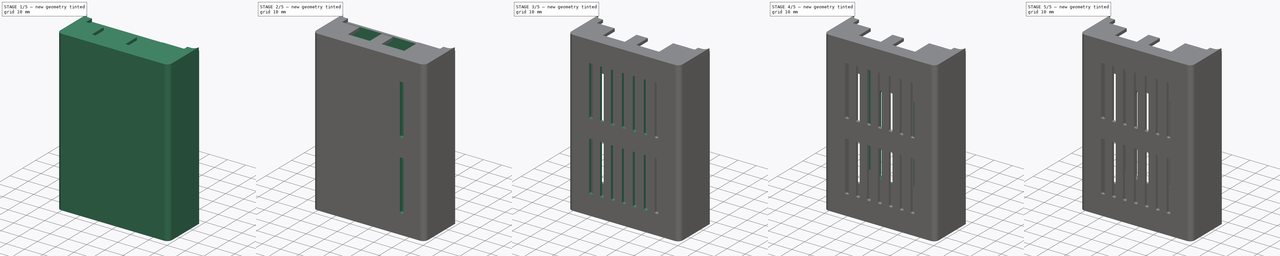
[diagram: build sequence overview — one tinted view per stage of 5, left to right]
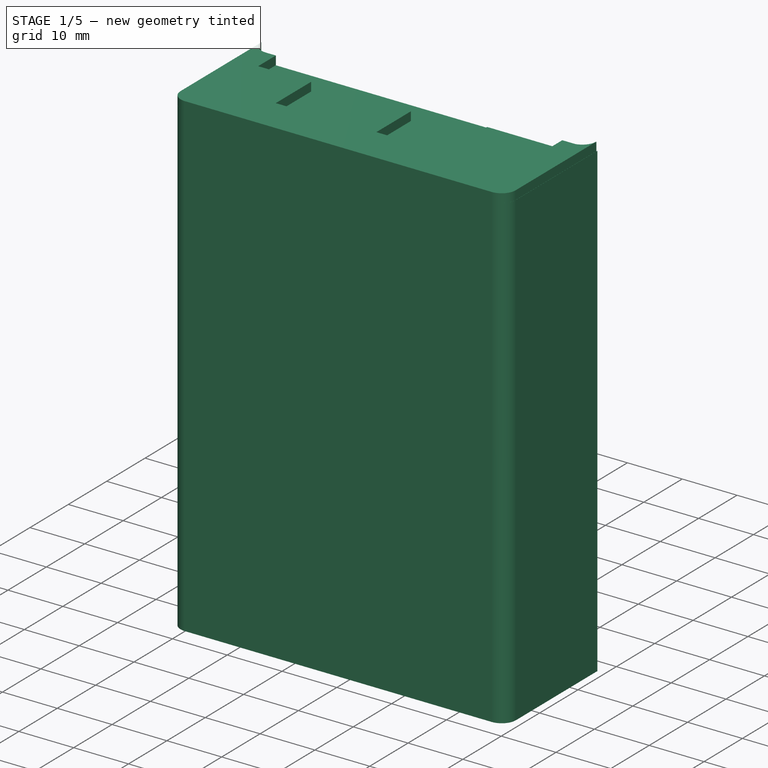
[diagram: stage 1 of 5 — iso view after this stage's code; geometry added in this stage tinted green]
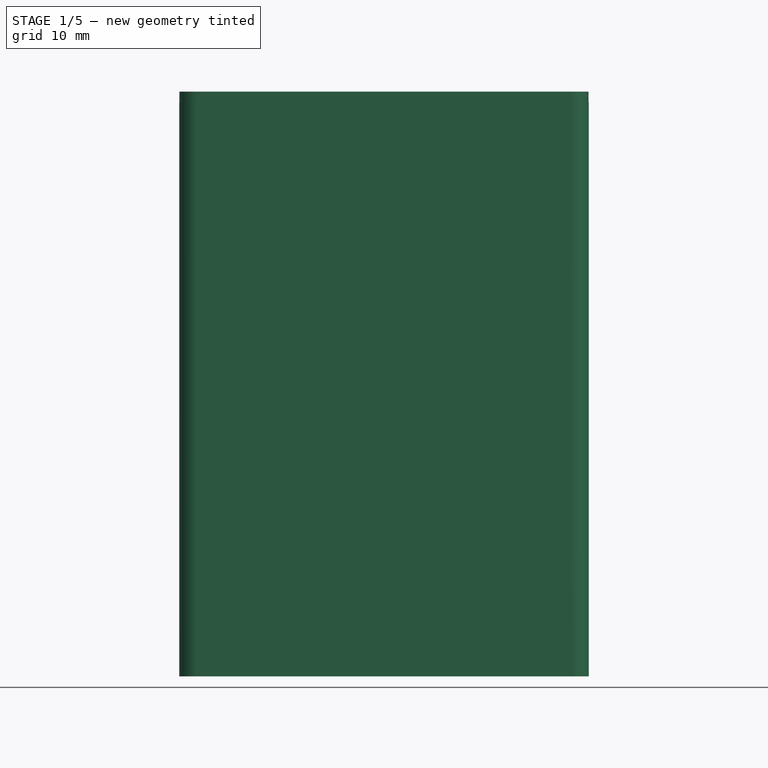
[diagram: stage 1 of 5 — front view after this stage's code; geometry added in this stage tinted green]
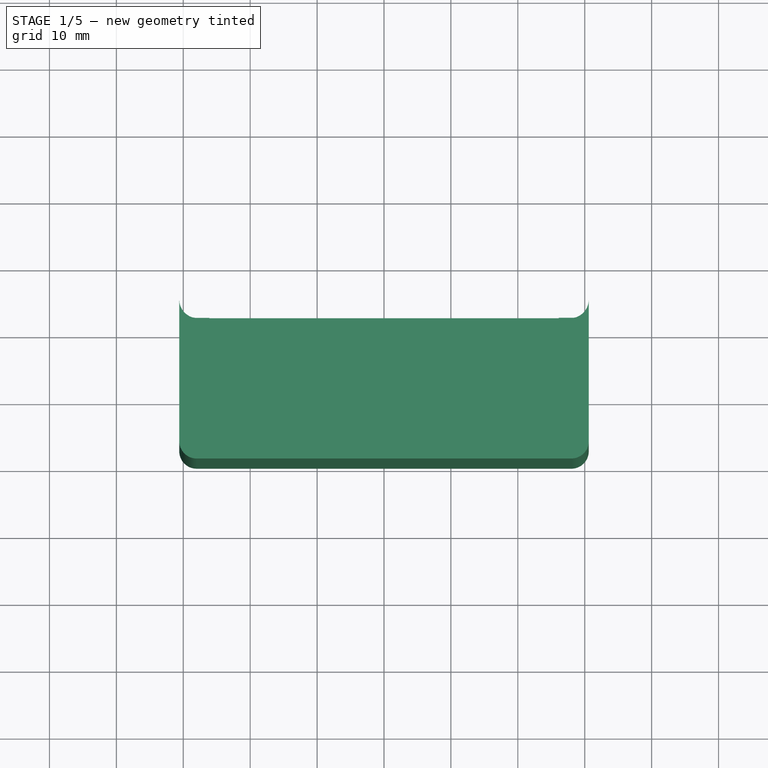
[diagram: stage 1 of 5 — top view after this stage's code; geometry added in this stage tinted green]
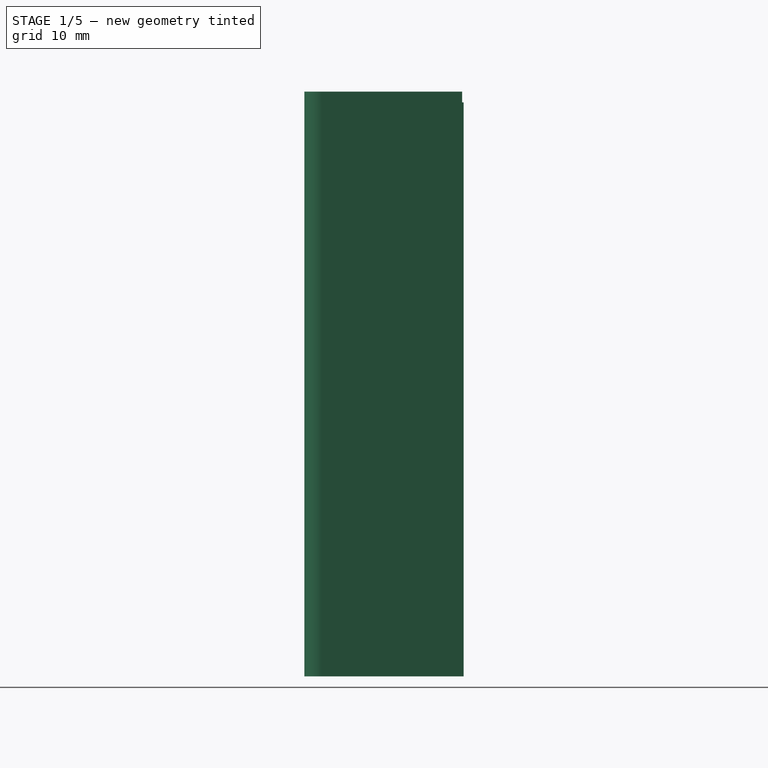
[diagram: stage 1 of 5 — right view after this stage's code; geometry added in this stage tinted green]
FCSTD DOCUMENT  (FreeCAD 0.16R5850 (Git))
Label: PiCaseModule
License: CreativeCommons Attribution-ShareAlike
LicenseURL: http://creativecommons.org/licenses/by-sa/4.0/
objects: Sketcher::SketchObject×13, PartDesign::Pocket×7, PartDesign::Pad×6, Part::Feature×5, PartDesign::LinearPattern×2, App::DocumentObjectGroup×2
note: 46 computed .brp shape members not serialized (recipe doc carries the construction recipe); baked Part::Feature solids carry a one-line shape summary decoded from their .brp

FEATURE [Part::Feature] Part__Feature  label="PiCase"
  Placement = pos=(0,0,0) rot=(0,0,1;3.14159rad)
  shape: bbox 61.2 x 16.7 x 85.8 mm, 248 faces (baked)
FEATURE [Sketcher::SketchObject] Sketch
  Placement = pos=(0,0,-0.8) rot=(0,0,1;0rad)
  sketch-geometry (8):
    g0: LineSegment StartX=-30.6 StartY=-5.8 StartZ=0 EndX=-30.6 EndY=-27 EndZ=0
    g1: LineSegment StartX=-28 StartY=-29.6 StartZ=0 EndX=28 EndY=-29.6 EndZ=0
    g2: LineSegment StartX=30.6 StartY=-27 StartZ=0 EndX=30.6 EndY=-5.8 EndZ=0
    g3: LineSegment StartX=27.8 StartY=-8.59999 StartZ=0 EndX=-27.8 EndY=-8.59999 EndZ=0
    g4: ArcOfCircle CenterX=27.8 CenterY=-5.79999 CenterZ=0 NormalX=0 NormalY=0 NormalZ=1 Radius=2.8 StartAngle=4.71239 EndAngle=6.28318
    g5: ArcOfCircle CenterX=-27.8 CenterY=-5.79999 CenterZ=0 NormalX=0 NormalY=0 NormalZ=1 Radius=2.8 StartAngle=3.1416 EndAngle=4.71239
    g6: ArcOfCircle CenterX=-28 CenterY=-27 CenterZ=0 NormalX=0 NormalY=0 NormalZ=1 Radius=2.6 StartAngle=3.14159 EndAngle=4.71239
    g7: ArcOfCircle CenterX=28 CenterY=-27 CenterZ=0 NormalX=0 NormalY=0 NormalZ=1 Radius=2.6 StartAngle=4.71239 EndAngle=6.28319
  constraints (26):
    c: Vertical(g0)
    c: Horizontal(g1)
    c: Horizontal(g3)
    c: Vertical(g2)
    c: Coincident(g4,g3)
    c: Coincident(g4,g2)
    c: Coincident(g5,g3)
    c: Coincident(g0,g5)
    c: Tangent(g0,g5)
    c: Tangent(g4,g2)
    c: Equal(g2,g0)
    c: Tangent(g3,g4)
    c: Tangent(g5,g3)
    c: Tangent(g0,g6) = -1.5708
    c: Tangent(g1,g6) = -1.5708
    c: Tangent(g1,g7) = -1.5708
    c: Tangent(g2,g7) = -1.5708
    c: Equal(g0,g2)
    c: Equal(g7,g6)
    c: Radius(g7) = 2.6
    c: Radius(g5) = 2.8
    c: DistanceX(g0,g2) = 61.2
    c: Symmetric(g1,g1,g-2)
    c: Symmetric(g3,g3,g-2)
    c: DistanceY(g0) = -5.8
    c: DistanceY(g3,g1) = -21
FEATURE [PartDesign::Pad] Pad
  Length = 85.8
  Length2 = 100
  Placement = pos=(0,0,-0.8) rot=(0,0,1;0rad)
  Sketch = -> Sketch
  Type = 0
FEATURE [Part::Feature] Fusion003001  label="raspberry"
  Placement = pos=(27.7528,2.63054,0.267509) rot=(0.57735,-0.57735,0.57735;2.0944rad)
  shape: bbox 58.51 x 19.41 x 87.16 mm, 5404 faces (baked)
FEATURE [Part::Feature] Fusion002002  label="RpiMoudle"
  Placement = pos=(-1.75304e-05,-11.1322,32.6451) rot=(0,0.707107,-0.707107;3.14159rad)
  shape: bbox 36.6 x 16.06 x 64.5 mm, 112 faces, 4 solids (baked)
FEATURE [Part::Feature] Raspberry_Pi_B__Sleeve_v1_1_CAP001_solid001  label="Raspberry_Pi_B_CAP"
  Placement = pos=(31.2004,-8.45364,86.6413) rot=(0,1,0;3.14159rad)
  shape: bbox 61.2 x 16.7 x 2.6 mm, 685 faces (baked)
FEATURE [Sketcher::SketchObject] Sketch008
  Placement = pos=(0,0,85) rot=(0,0,1;0rad)
  sketch-geometry (20):
    g0: LineSegment StartX=30.5739 StartY=-6.02613 StartZ=0 EndX=30.5739 EndY=-27.0261 EndZ=0
    g1: LineSegment StartX=28 StartY=-29.6 StartZ=0 EndX=-28 EndY=-29.6 EndZ=0
    g2: LineSegment StartX=-30.5739 StartY=-27.0261 StartZ=0 EndX=-30.5739 EndY=-6.02613 EndZ=0
    g3: ArcOfCircle CenterX=28 CenterY=-27.0261 CenterZ=0 NormalX=0 NormalY=0 NormalZ=1 Radius=2.57387 StartAngle=4.71239 EndAngle=6.28319
    g4: ArcOfCircle CenterX=-28 CenterY=-27.0261 CenterZ=0 NormalX=0 NormalY=0 NormalZ=1 Radius=2.57387 StartAngle=3.14159 EndAngle=4.71239
    g5: ArcOfCircle CenterX=28.0248 CenterY=-6.02613 CenterZ=0 NormalX=0 NormalY=0 NormalZ=1 Radius=2.54908 StartAngle=4.84238 EndAngle=6.28319
    g6: ArcOfCircle CenterX=-28.0248 CenterY=-6.02613 CenterZ=0 NormalX=0 NormalY=0 NormalZ=1 Radius=2.54908 StartAngle=3.14159 EndAngle=4.71239
    g7: LineSegment StartX=-28.0248 StartY=-8.57521 StartZ=0 EndX=-26.1248 EndY=-8.57521 EndZ=0
    g8: LineSegment StartX=-26.1248 StartY=-8.57521 StartZ=0 EndX=-26.1248 EndY=-13.1752 EndZ=0
    g9: LineSegment StartX=-26.1248 StartY=-13.1752 StartZ=0 EndX=-16.4748 EndY=-13.1752 EndZ=0
    g10: LineSegment StartX=-16.4748 StartY=-13.1752 StartZ=0 EndX=-16.4748 EndY=-22.3752 EndZ=0
    g11: LineSegment StartX=-16.4748 StartY=-22.3752 StartZ=0 EndX=-4.47479 EndY=-22.3752 EndZ=0
    g12: LineSegment StartX=-4.47479 StartY=-22.3752 StartZ=0 EndX=-4.47479 EndY=-13.1752 EndZ=0
    g13: LineSegment StartX=-4.47479 StartY=-13.1752 StartZ=0 EndX=1.72521 EndY=-13.1752 EndZ=0
    g14: LineSegment StartX=1.72521 StartY=-13.1752 StartZ=0 EndX=1.72521 EndY=-22.1537 EndZ=0
    g15: LineSegment StartX=1.72521 StartY=-22.1537 StartZ=0 EndX=14.2252 EndY=-22.1537 EndZ=0
    g16: LineSegment StartX=14.2252 StartY=-22.1537 StartZ=0 EndX=14.2252 EndY=-11.1537 EndZ=0
    g17: LineSegment StartX=14.2252 StartY=-11.1537 StartZ=0 EndX=26.1252 EndY=-11.1537 EndZ=0
    g18: LineSegment StartX=26.1252 StartY=-11.1537 StartZ=0 EndX=26.1252 EndY=-8.5537 EndZ=0
    g19: LineSegment StartX=26.1252 StartY=-8.5537 StartZ=0 EndX=28.3552 EndY=-8.5537 EndZ=0
  constraints (58):
    c: Vertical(g0)
    c: Vertical(g2)
    c: Tangent(g1,g3) = 1.5708
    c: Tangent(g0,g3) = 1.5708
    c: Tangent(g1,g4) = 1.5708
    c: Tangent(g2,g4) = 1.5708
    c: Symmetric(g0,g2,g-2)
    c: Equal(g4,g3)
    c: DistanceY(g1) = -29.6
    c: Radius(g3) = 2.57387
    c: DistanceX(g1) = 28
    c: Coincident(g5,g0)
    c: Tangent(g5,g0)
    c: DistanceY(g0) = -21
    c: Radius(g5) = 2.54908
    c: Coincident(g6,g2)
    c: Tangent(g2,g6)
    c: Equal(g6,g5)
    c: Equal(g2,g0)
    c: Tangent(g6,g7) = -1.5708
    c: Coincident(g7,g8)
    c: Coincident(g8,g9)
    c: Horizontal(g9)
    c: Coincident(g9,g10)
    c: Vertical(g10)
    c: Coincident(g10,g11)
    c: Horizontal(g11)
    c: Coincident(g11,g12)
    c: Vertical(g12)
    c: Coincident(g12,g13)
    c: Horizontal(g13)
    c: Coincident(g13,g14)
    c: Vertical(g14)
    c: Coincident(g14,g15)
    c: Horizontal(g15)
    c: Coincident(g15,g16)
    c: Vertical(g16)
    c: Coincident(g16,g17)
    c: Horizontal(g17)
    c: Coincident(g17,g18)
    c: Vertical(g18)
    c: Coincident(g18,g19)
    c: Coincident(g19,g5)
    c: Vertical(g8)
    c: Horizontal(g7)
    c: Horizontal(g19)
    c: DistanceX(g19) = 2.23
    c: DistanceX(g15) = 12.5
    c: DistanceY(g18) = 2.6
    c: DistanceY(g16) = 11
    c: DistanceX(g11) = 12
    c: DistanceX(g7) = 1.9
    c: DistanceY(g8) = -4.6
    c: DistanceY(g10) = -9.2
    c: DistanceX(g9) = 9.65
    c: DistanceY(g12) = 9.2
    c: DistanceX(g17) = 11.9
    c: DistanceX(g13) = 6.2
FEATURE [PartDesign::Pad] Pad003  label="RpiModule_cap"
  Length = 1.6
  Length2 = 100
  Placement = pos=(0,0,85) rot=(0,0,1;0rad)
  Sketch = -> Sketch008
  Type = 0
FEATURE [Sketcher::SketchObject] Sketch011
  ExternalGeometry = -> [Pad003]
  Placement = pos=(0,0,85) rot=(1,0,0;3.14159rad)
  Support = -> Pad003 [Face21]
  sketch-geometry (8):
    g0: LineSegment StartX=-28.9248 StartY=8.57521 StartZ=0 EndX=-27.6248 EndY=8.57521 EndZ=0
    g1: LineSegment StartX=-27.6248 StartY=8.57521 StartZ=0 EndX=-27.6248 EndY=24.5752 EndZ=0
    g2: LineSegment StartX=-27.6248 StartY=24.5752 StartZ=0 EndX=-28.9248 EndY=24.5752 EndZ=0
    g3: LineSegment StartX=-28.9248 StartY=24.5752 StartZ=0 EndX=-28.9248 EndY=8.57521 EndZ=0
    g4: LineSegment StartX=27.6252 StartY=24.5537 StartZ=0 EndX=28.9252 EndY=24.5537 EndZ=0
    g5: LineSegment StartX=28.9252 StartY=24.5537 StartZ=0 EndX=28.9252 EndY=8.5537 EndZ=0
    g6: LineSegment StartX=28.9252 StartY=8.5537 StartZ=0 EndX=27.6252 EndY=8.5537 EndZ=0
    g7: LineSegment StartX=27.6252 StartY=8.5537 StartZ=0 EndX=27.6252 EndY=24.5537 EndZ=0
  constraints (24):
    c: Coincident(g0,g1)
    c: Coincident(g1,g2)
    c: Coincident(g2,g3)
    c: Coincident(g3,g0)
    c: Horizontal(g0)
    c: Horizontal(g2)
    c: Vertical(g1)
    c: Vertical(g3)
    c: PointOnObject(g0,g-3)
    c: DistanceX(g0,g-3) = 1.5
    c: DistanceX(g0) = 1.3
    c: DistanceY(g3) = -16
    c: Coincident(g4,g5)
    c: Coincident(g5,g6)
    c: Coincident(g6,g7)
    c: Coincident(g7,g4)
    c: Horizontal(g4)
    c: Horizontal(g6)
    c: Vertical(g5)
    c: Vertical(g7)
    c: PointOnObject(g6,g-4)
    c: DistanceX(g6) = -1.3
    c: DistanceX(g6,g-4) = -1.5
    c: Equal(g7,g1)
FEATURE [PartDesign::Pad] Pad004
  Length = 2.25
  Length2 = 100
  Placement = pos=(0,0,85) rot=(0,0,1;0rad)
  Sketch = -> Sketch011
  Type = 0
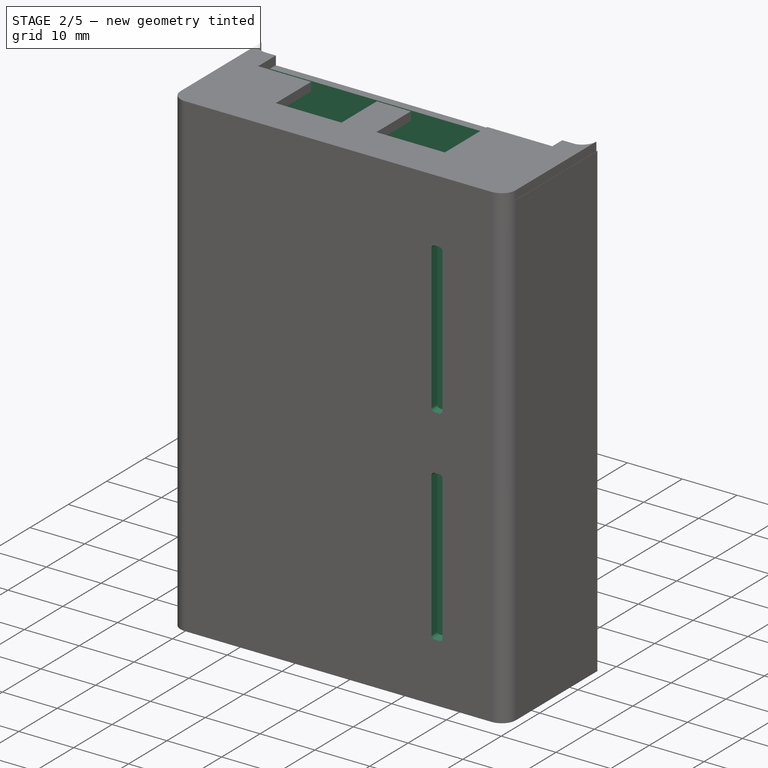
[diagram: stage 2 of 5 — iso view after this stage's code; geometry added in this stage tinted green]
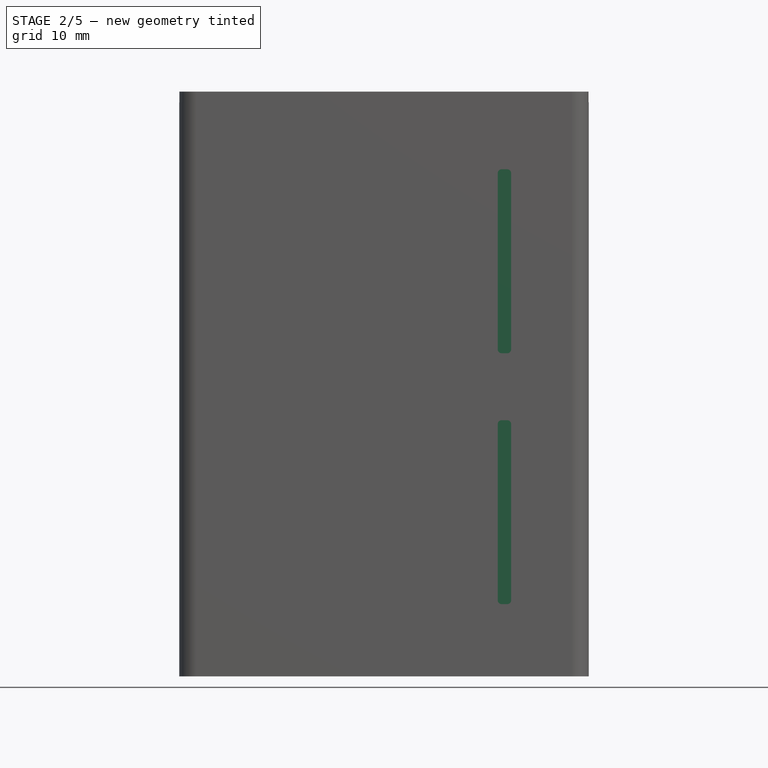
[diagram: stage 2 of 5 — front view after this stage's code; geometry added in this stage tinted green]
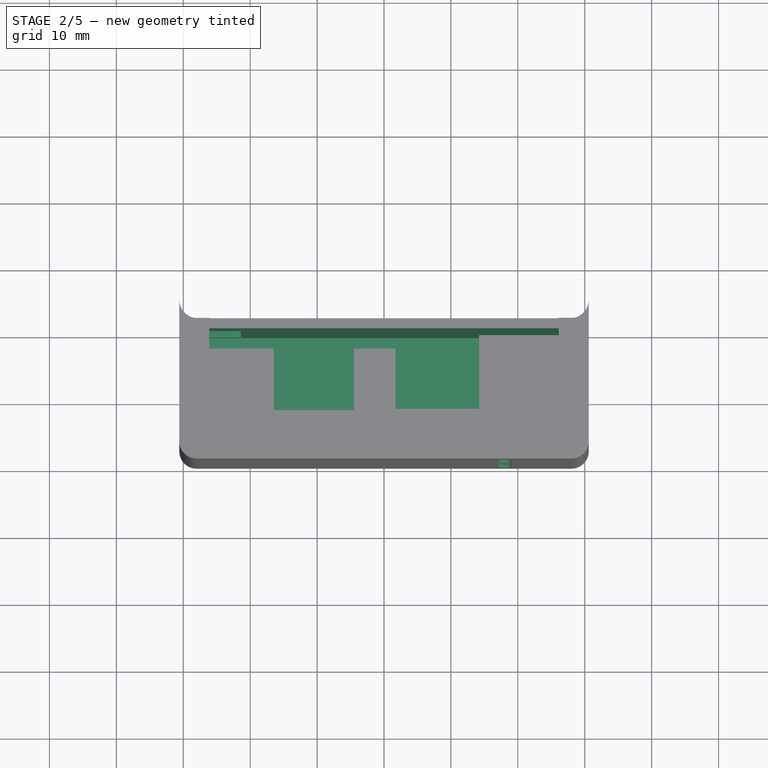
[diagram: stage 2 of 5 — top view after this stage's code; geometry added in this stage tinted green]
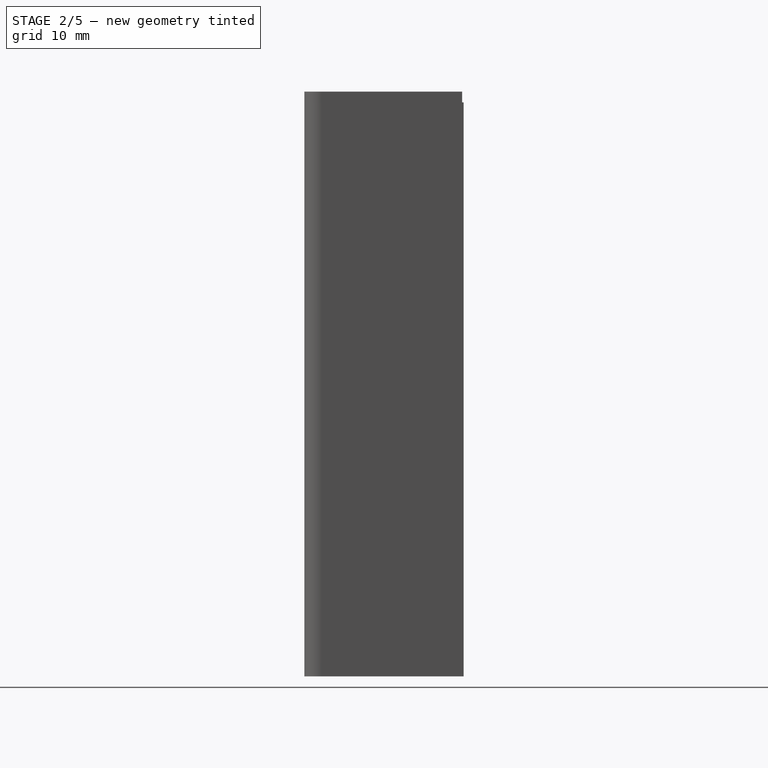
[diagram: stage 2 of 5 — right view after this stage's code; geometry added in this stage tinted green]
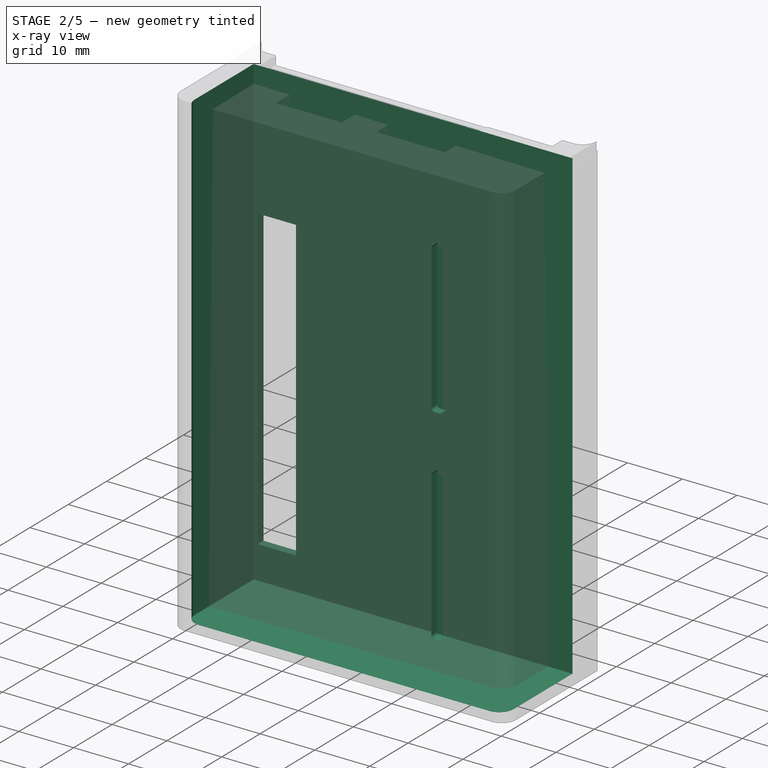
[diagram: stage 2 of 5 — x-ray composite at the iso view; earlier geometry ghosted, this stage's added geometry solid]
FEATURE [Sketcher::SketchObject] Sketch001
  ExternalGeometry = -> [Pad]
  Placement = pos=(0,0,85) rot=(0,0,1;0rad)
  Support = -> Pad [Face10]
  sketch-geometry (6):
    g0: LineSegment StartX=-29.1 StartY=-10.1 StartZ=0 EndX=-29.1 EndY=-25.5 EndZ=0
    g1: LineSegment StartX=-26.5 StartY=-28.1 StartZ=0 EndX=26.5 EndY=-28.1 EndZ=0
    g2: LineSegment StartX=29.1 StartY=-25.5 StartZ=0 EndX=29.1 EndY=-10.1 EndZ=0
    g3: LineSegment StartX=29.1 StartY=-10.1 StartZ=0 EndX=-29.1 EndY=-10.1 EndZ=0
    g4: ArcOfCircle CenterX=-26.5 CenterY=-25.5 CenterZ=0 NormalX=0 NormalY=0 NormalZ=1 Radius=2.6 StartAngle=3.14159 EndAngle=4.71239
    g5: ArcOfCircle CenterX=26.5 CenterY=-25.5 CenterZ=0 NormalX=0 NormalY=0 NormalZ=1 Radius=2.6 StartAngle=4.71239 EndAngle=6.28319
  constraints (15):
    c: Vertical(g0)
    c: Vertical(g2)
    c: Tangent(g0,g4) = -1.5708
    c: Tangent(g1,g4) = -1.5708
    c: Tangent(g1,g5) = -1.5708
    c: Tangent(g2,g5) = -1.5708
    c: Equal(g4,g5)
    c: Symmetric(g1,g1,g-2)
    c: Symmetric(g3,g3,g-2)
    c: Radius(g4) = 2.6
    c: DistanceX(g0,g-4) = -1.5
    c: DistanceY(g-3,g1) = 1.5
    c: DistanceY(g3,g-5) = 1.5
    c: Coincident(g0,g3)
    c: Coincident(g2,g3)
FEATURE [PartDesign::Pocket] Pocket
  Length = 85
  Placement = pos=(0,0,-0.8) rot=(0,0,1;0rad)
  Sketch = -> Sketch001
  Type = 0
FEATURE [Sketcher::SketchObject] Sketch002
  Placement = pos=(0,-8.59999,-0.8) rot=(0,0.707107,0.707107;3.14159rad)
  Support = -> Pocket [Face1]
  sketch-geometry (4):
    g0: LineSegment StartX=21.4 StartY=61.29 StartZ=0 EndX=28.4 EndY=61.29 EndZ=0
    g1: LineSegment StartX=28.4 StartY=61.29 StartZ=0 EndX=28.4 EndY=6.79 EndZ=0
    g2: LineSegment StartX=28.4 StartY=6.79 StartZ=0 EndX=21.4 EndY=6.79 EndZ=0
    g3: LineSegment StartX=21.4 StartY=6.79 StartZ=0 EndX=21.4 EndY=61.29 EndZ=0
  constraints (12):
    c: Coincident(g0,g1)
    c: Coincident(g1,g2)
    c: Coincident(g2,g3)
    c: Coincident(g3,g0)
    c: Horizontal(g0)
    c: Horizontal(g2)
    c: Vertical(g1)
    c: Vertical(g3)
    c: DistanceX(g1) = 28.4
    c: DistanceY(g1) = 6.79
    c: DistanceX(g2) = -7
    c: DistanceY(g1) = -54.5
FEATURE [PartDesign::Pocket] Pocket001
  Length = 9
  Midplane = true
  Placement = pos=(0,0,-0.8) rot=(0,0,1;0rad)
  Sketch = -> Sketch002
  Type = 0
FEATURE [Sketcher::SketchObject] Sketch003
  Placement = pos=(0,-29.6,-0.8) rot=(1,0,0;1.5708rad)
  Support = -> Pocket001 [Face11]
  sketch-geometry (16):
    g0: LineSegment StartX=17.5729 StartY=75.7909 StartZ=0 EndX=18.4271 EndY=75.7909 EndZ=0
    g1: LineSegment StartX=19 StartY=75.218 StartZ=0 EndX=19 EndY=48.8736 EndZ=0
    g2: LineSegment StartX=18.4271 StartY=48.3007 StartZ=0 EndX=17.5729 EndY=48.3007 EndZ=0
    g3: LineSegment StartX=17 StartY=48.8736 StartZ=0 EndX=17 EndY=75.218 EndZ=0
    g4: ArcOfCircle CenterX=17.5729 CenterY=75.218 CenterZ=0 NormalX=0 NormalY=0 NormalZ=1 Radius=0.572869 StartAngle=1.5708 EndAngle=3.14159
    g5: ArcOfCircle CenterX=18.4271 CenterY=75.218 CenterZ=0 NormalX=0 NormalY=0 NormalZ=1 Radius=0.572869 StartAngle=0 EndAngle=1.5708
    g6: ArcOfCircle CenterX=17.5729 CenterY=48.8736 CenterZ=0 NormalX=0 NormalY=0 NormalZ=1 Radius=0.572869 StartAngle=3.14159 EndAngle=4.71239
    g7: ArcOfCircle CenterX=18.4271 CenterY=48.8736 CenterZ=0 NormalX=0 NormalY=0 NormalZ=1 Radius=0.572869 StartAngle=4.71239 EndAngle=6.28319
    g8: LineSegment StartX=17.5729 StartY=38.2915 StartZ=0 EndX=18.4271 EndY=38.2915 EndZ=0
    g9: LineSegment StartX=19 StartY=37.7186 StartZ=0 EndX=19 EndY=11.3742 EndZ=0
    g10: LineSegment StartX=18.4271 StartY=10.8013 StartZ=0 EndX=17.5729 EndY=10.8013 EndZ=0
    g11: LineSegment StartX=17 StartY=11.3742 StartZ=0 EndX=17 EndY=37.7186 EndZ=0
    g12: ArcOfCircle CenterX=17.5729 CenterY=37.7186 CenterZ=0 NormalX=0 NormalY=0 NormalZ=1 Radius=0.572869 StartAngle=1.5708 EndAngle=3.14159
    g13: ArcOfCircle CenterX=18.4271 CenterY=37.7186 CenterZ=0 NormalX=0 NormalY=0 NormalZ=1 Radius=0.572869 StartAngle=0 EndAngle=1.5708
    g14: ArcOfCircle CenterX=17.5729 CenterY=11.3742 CenterZ=0 NormalX=0 NormalY=0 NormalZ=1 Radius=0.572869 StartAngle=3.14159 EndAngle=4.71239
    g15: ArcOfCircle CenterX=18.4271 CenterY=11.3742 CenterZ=0 NormalX=0 NormalY=0 NormalZ=1 Radius=0.572869 StartAngle=4.71239 EndAngle=6.28319
  constraints (40):
    c: Horizontal(g0)
    c: Horizontal(g2)
    c: Vertical(g1)
    c: Vertical(g3)
    c: Tangent(g0,g4) = 1.5708
    c: Tangent(g3,g4) = 1.5708
    c: Tangent(g0,g5) = 1.5708
    c: Tangent(g1,g5) = 1.5708
    c: Tangent(g3,g6) = 1.5708
    c: Tangent(g2,g6) = 1.5708
    c: Tangent(g2,g7) = 1.5708
    c: Tangent(g1,g7) = 1.5708
    c: Equal(g6,g7)
    c: Equal(g7,g4)
    c: Equal(g4,g5)
    c: DistanceX(g1,g3) = -2
    c: DistanceX(g3) = 17
    c: DistanceY(g3) = 75.218
    c: Radius(g4) = 0.572869
    c: DistanceY(g1) = -26.3444
    c: Horizontal(g8)
    c: Horizontal(g10)
    c: Vertical(g9)
    c: Vertical(g11)
    c: Tangent(g8,g12) = 1.5708
    c: Tangent(g11,g12) = 1.5708
    c: Tangent(g8,g13) = 1.5708
    c: Tangent(g9,g13) = 1.5708
    c: Tangent(g11,g14) = 1.5708
    c: Tangent(g10,g14) = 1.5708
    c: Tangent(g10,g15) = 1.5708
    c: Tangent(g9,g15) = 1.5708
    c: Equal(g14,g15)
    c: Equal(g15,g12)
    c: Equal(g12,g13)
    c: DistanceX(g9,g11) = -2
    c: Equal(g4,g12) = 0.572869
    c: Equal(g1,g9) = -26.3444
    c: DistanceY(g11) = 37.7186
    c: DistanceX(g11) = 17
FEATURE [PartDesign::Pocket] Pocket002
  Length = 5
  Placement = pos=(0,0,-0.8) rot=(0,0,1;0rad)
  Sketch = -> Sketch003
  Type = 0
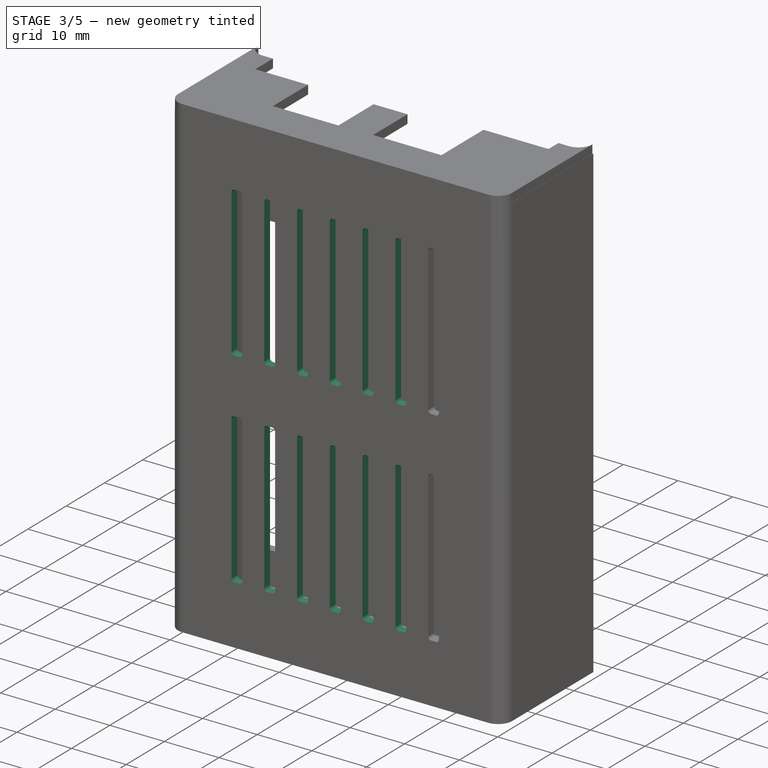
[diagram: stage 3 of 5 — iso view after this stage's code; geometry added in this stage tinted green]
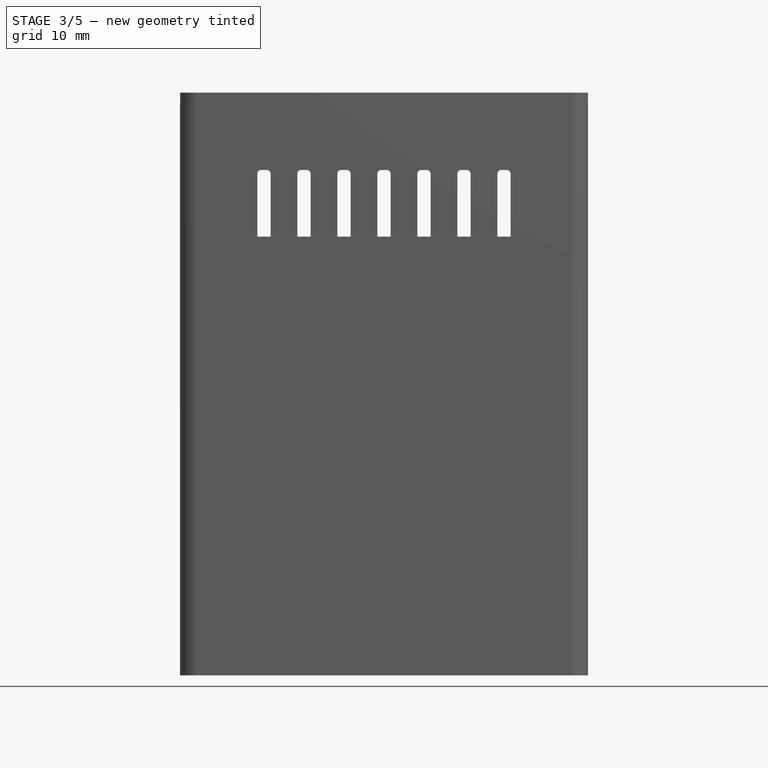
[diagram: stage 3 of 5 — front view after this stage's code; geometry added in this stage tinted green]
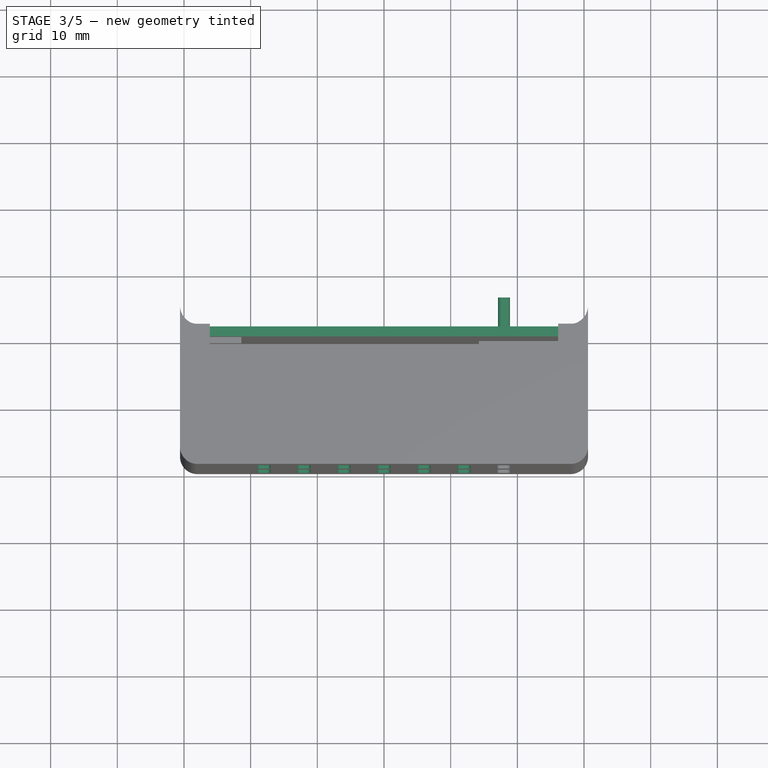
[diagram: stage 3 of 5 — top view after this stage's code; geometry added in this stage tinted green]
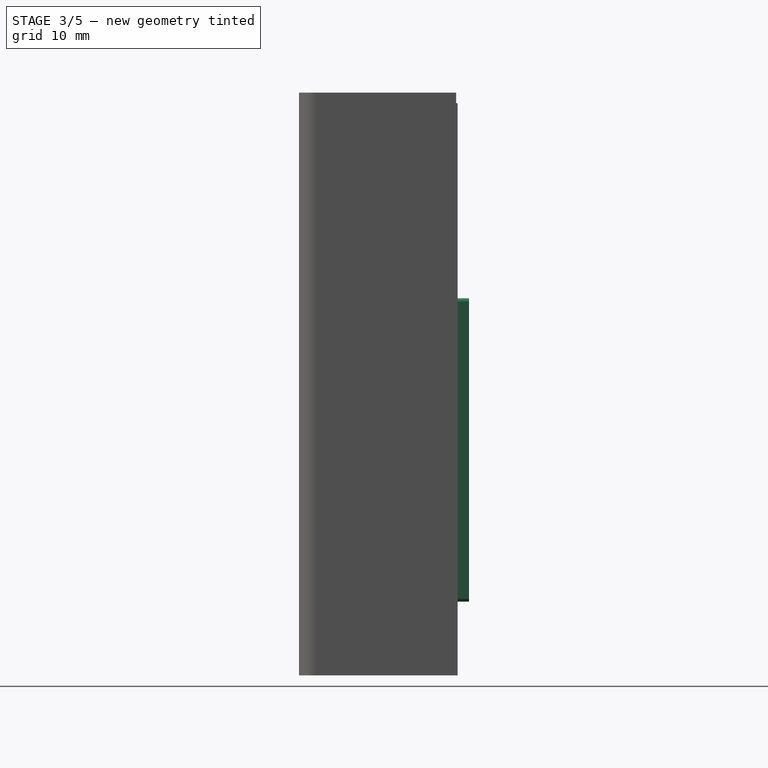
[diagram: stage 3 of 5 — right view after this stage's code; geometry added in this stage tinted green]
FEATURE [PartDesign::LinearPattern] LinearPattern
  Direction = -> Sketch003 [H_Axis]
  Length = 36
  Occurrences = 7
  Originals = -> [Pocket002]
  Placement = pos=(0,0,-0.8) rot=(0,0,1;0rad)
  Reversed = true
FEATURE [Sketcher::SketchObject] Sketch004
  ExternalGeometry = -> [LinearPattern]
  Placement = pos=(0,0,85) rot=(0,0,1;0rad)
  Support = -> LinearPattern [Face7]
  sketch-geometry (4):
    g0: LineSegment StartX=-29.1 StartY=-7.09999 StartZ=0 EndX=29.1 EndY=-7.09999 EndZ=0
    g1: LineSegment StartX=29.1 StartY=-7.09999 StartZ=0 EndX=29.1 EndY=-10.1 EndZ=0
    g2: LineSegment StartX=29.1 StartY=-10.1 StartZ=0 EndX=-29.1 EndY=-10.1 EndZ=0
    g3: LineSegment StartX=-29.1 StartY=-10.1 StartZ=0 EndX=-29.1 EndY=-7.09999 EndZ=0
  constraints (11):
    c: Coincident(g0,g1)
    c: Coincident(g2,g3)
    c: Coincident(g3,g0)
    c: Horizontal(g0)
    c: Horizontal(g2)
    c: Vertical(g1)
    c: Vertical(g3)
    c: Coincident(g1,g2)
    c: Coincident(g1,g-3)
    c: Coincident(g2,g-3)
    c: DistanceY(g1) = -3
FEATURE [PartDesign::Pocket] Pocket003
  Length = 20
  Placement = pos=(0,0,-0.8) rot=(0,0,1;0rad)
  Sketch = -> Sketch004
  Type = 0
FEATURE [Sketcher::SketchObject] Sketch005
  Placement = pos=(0,-10.1,-0.8) rot=(1,0,0;1.5708rad)
  Support = -> Pocket003 [Face16]
  sketch-geometry (8):
    g0: LineSegment StartX=17.67 StartY=56.57 StartZ=0 EndX=18.33 EndY=56.57 EndZ=0
    g1: LineSegment StartX=18.9 StartY=56 StartZ=0 EndX=18.9 EndY=11.6228 EndZ=0
    g2: LineSegment StartX=18.33 StartY=11.0528 StartZ=0 EndX=17.67 EndY=11.0528 EndZ=0
    g3: LineSegment StartX=17.1 StartY=11.6228 StartZ=0 EndX=17.1 EndY=56 EndZ=0
    g4: ArcOfCircle CenterX=17.67 CenterY=56 CenterZ=0 NormalX=0 NormalY=0 NormalZ=1 Radius=0.57 StartAngle=1.5708 EndAngle=3.14159
    g5: ArcOfCircle CenterX=18.33 CenterY=56 CenterZ=0 NormalX=0 NormalY=0 NormalZ=1 Radius=0.57 StartAngle=0 EndAngle=1.5708
    g6: ArcOfCircle CenterX=18.33 CenterY=11.6228 CenterZ=0 NormalX=0 NormalY=0 NormalZ=1 Radius=0.57 StartAngle=4.71239 EndAngle=6.28319
    g7: ArcOfCircle CenterX=17.67 CenterY=11.6228 CenterZ=0 NormalX=0 NormalY=0 NormalZ=1 Radius=0.57 StartAngle=3.14159 EndAngle=4.71239
  constraints (20):
    c: Horizontal(g0)
    c: Horizontal(g2)
    c: Vertical(g3)
    c: Tangent(g3,g4) = 1.5708
    c: Tangent(g0,g4) = 1.5708
    c: Tangent(g0,g5) = 1.5708
    c: Tangent(g1,g5) = 1.5708
    c: Tangent(g2,g6) = 1.5708
    c: Tangent(g1,g6) = 1.5708
    c: Tangent(g2,g7) = 1.5708
    c: Tangent(g3,g7) = 1.5708
    c: Equal(g7,g6)
    c: Equal(g6,g4)
    c: Equal(g4,g5)
    c: DistanceX(g3) = 17.1
    c: DistanceX(g1,g3) = -1.8
    c: Radius(g4) = 0.57
    c: DistanceY(g3) = 56
    c: DistanceY(g1) = -44.3772
    c: Vertical(g1)
FEATURE [PartDesign::Pad] Pad001
  Length = 6
  Length2 = 100
  Placement = pos=(0,0,-0.8) rot=(0,0,1;0rad)
  Reversed = true
  Sketch = -> Sketch005
  Type = 0
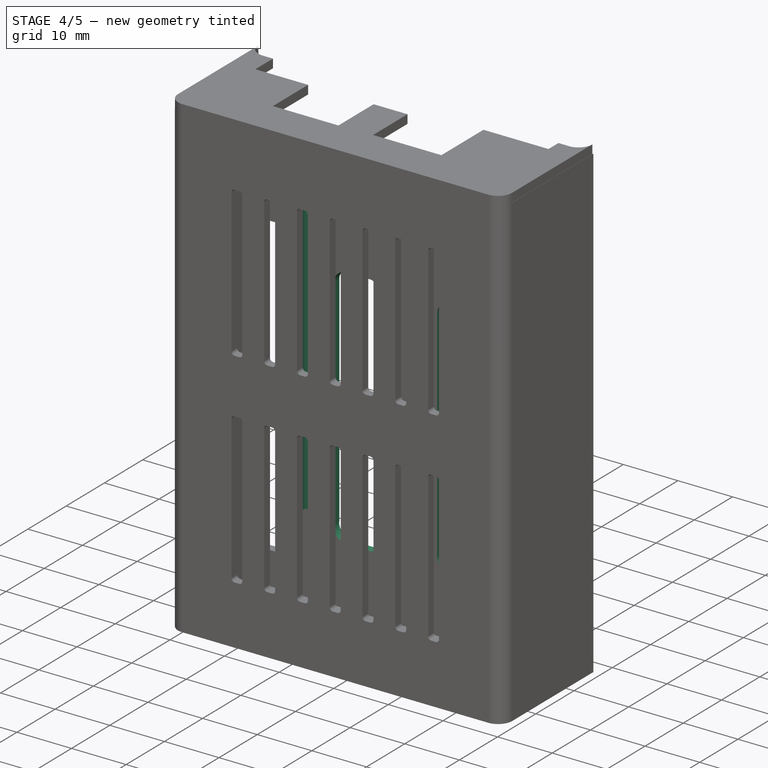
[diagram: stage 4 of 5 — iso view after this stage's code; geometry added in this stage tinted green]
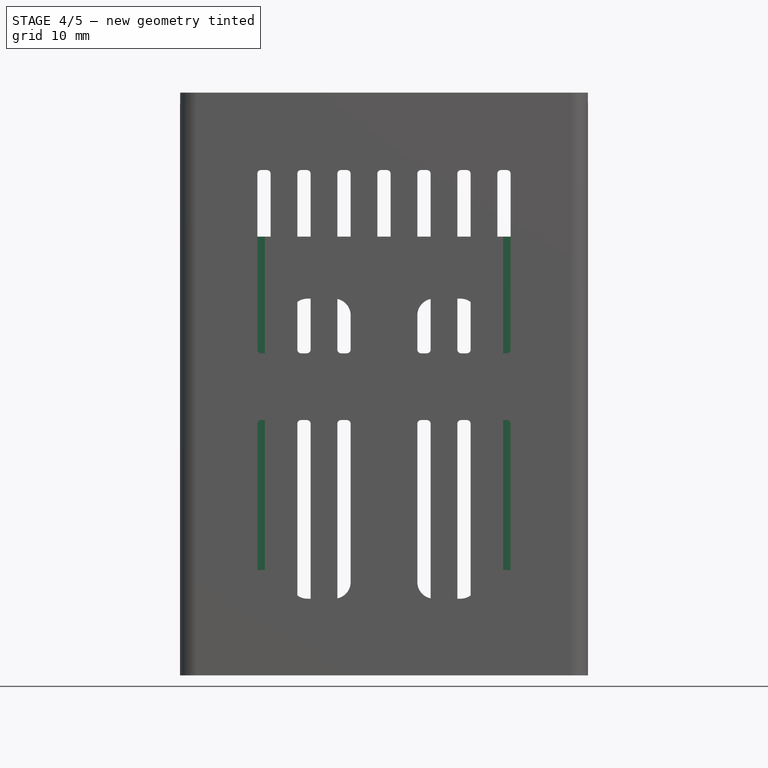
[diagram: stage 4 of 5 — front view after this stage's code; geometry added in this stage tinted green]
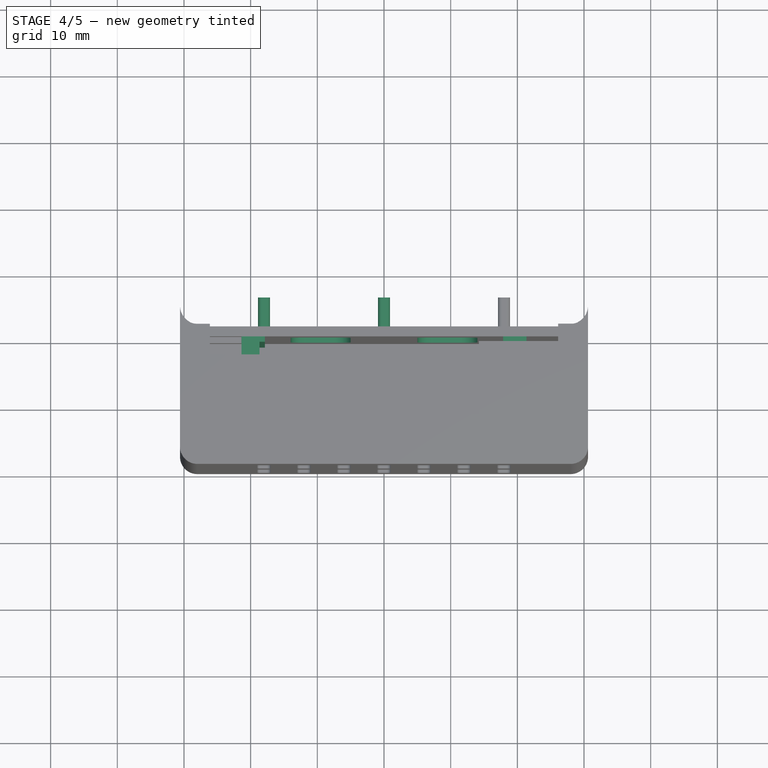
[diagram: stage 4 of 5 — top view after this stage's code; geometry added in this stage tinted green]
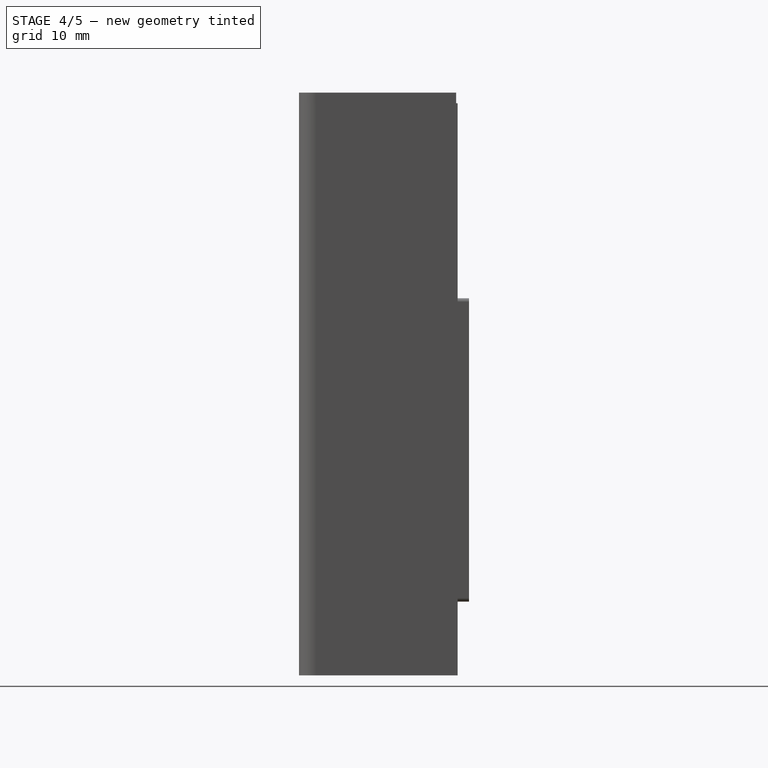
[diagram: stage 4 of 5 — right view after this stage's code; geometry added in this stage tinted green]
FEATURE [PartDesign::LinearPattern] LinearPattern001
  Direction = -> Sketch005 [H_Axis]
  Length = 36
  Occurrences = 3
  Originals = -> [Pad001]
  Placement = pos=(0,0,-0.8) rot=(0,0,1;0rad)
  Reversed = true
FEATURE [Sketcher::SketchObject] Sketch006
  Placement = pos=(0,-8.59999,-0.8) rot=(0,0.707107,0.707107;3.14159rad)
  Support = -> LinearPattern001 [Face2]
  sketch-geometry (16):
    g0: LineSegment StartX=-11.5 StartY=56.5 StartZ=0 EndX=-7.5 EndY=56.5 EndZ=0
    g1: LineSegment StartX=-5 StartY=54 StartZ=0 EndX=-5 EndY=14 EndZ=0
    g2: LineSegment StartX=-7.5 StartY=11.5 StartZ=0 EndX=-11.5 EndY=11.5 EndZ=0
    g3: LineSegment StartX=-14 StartY=14 StartZ=0 EndX=-14 EndY=54 EndZ=0
    g4: LineSegment StartX=7.5 StartY=56.5 StartZ=0 EndX=11.5 EndY=56.5 EndZ=0
    g5: LineSegment StartX=14 StartY=54 StartZ=0 EndX=14 EndY=14 EndZ=0
    g6: LineSegment StartX=11.5 StartY=11.5 StartZ=0 EndX=7.5 EndY=11.5 EndZ=0
    g7: LineSegment StartX=5 StartY=14 StartZ=0 EndX=5 EndY=54 EndZ=0
    g8: ArcOfCircle CenterX=-11.5 CenterY=54 CenterZ=0 NormalX=0 NormalY=0 NormalZ=1 Radius=2.5 StartAngle=1.5708 EndAngle=3.14159
    g9: ArcOfCircle CenterX=-7.5 CenterY=54 CenterZ=0 NormalX=0 NormalY=0 NormalZ=1 Radius=2.5 StartAngle=0 EndAngle=1.5708
    g10: ArcOfCircle CenterX=7.5 CenterY=54 CenterZ=0 NormalX=0 NormalY=0 NormalZ=1 Radius=2.5 StartAngle=1.5708 EndAngle=3.14159
    g11: ArcOfCircle CenterX=11.5 CenterY=54 CenterZ=0 NormalX=0 NormalY=0 NormalZ=1 Radius=2.5 StartAngle=0 EndAngle=1.5708
    g12: ArcOfCircle CenterX=11.5 CenterY=14 CenterZ=0 NormalX=0 NormalY=0 NormalZ=1 Radius=2.5 StartAngle=4.71239 EndAngle=6.28319
    g13: ArcOfCircle CenterX=7.5 CenterY=14 CenterZ=0 NormalX=0 NormalY=0 NormalZ=1 Radius=2.5 StartAngle=3.14159 EndAngle=4.71239
    g14: ArcOfCircle CenterX=-7.5 CenterY=14 CenterZ=0 NormalX=0 NormalY=0 NormalZ=1 Radius=2.5 StartAngle=4.71239 EndAngle=6.28319
    g15: ArcOfCircle CenterX=-11.5 CenterY=14 CenterZ=0 NormalX=0 NormalY=0 NormalZ=1 Radius=2.5 StartAngle=3.14159 EndAngle=4.71239
  constraints (39):
    c: Horizontal(g0)
    c: Horizontal(g2)
    c: Vertical(g1)
    c: Vertical(g3)
    c: Horizontal(g4)
    c: Horizontal(g6)
    c: Vertical(g5)
    c: Vertical(g7)
    c: Tangent(g3,g8) = 1.5708
    c: Tangent(g0,g8) = 1.5708
    c: Tangent(g0,g9) = 1.5708
    c: Tangent(g1,g9) = 1.5708
    c: Tangent(g7,g10) = 1.5708
    c: Tangent(g4,g10) = 1.5708
    c: Tangent(g4,g11) = 1.5708
    c: Tangent(g5,g11) = 1.5708
    c: Tangent(g5,g12) = 1.5708
    c: Tangent(g6,g12) = 1.5708
    c: Tangent(g6,g13) = 1.5708
    c: Tangent(g7,g13) = 1.5708
    c: Tangent(g2,g14) = 1.5708
    c: Tangent(g1,g14) = 1.5708
    c: Tangent(g2,g15) = 1.5708
    c: Tangent(g3,g15) = 1.5708
    c: Equal(g1,g7)
    c: Equal(g8,g9)
    c: Equal(g9,g10)
    c: Equal(g10,g11)
    c: Equal(g11,g12)
    c: Equal(g12,g13)
    c: Equal(g13,g14)
    c: Equal(g14,g15)
    c: Symmetric(g1,g7,g-2)
    c: Equal(g0,g4)
    c: DistanceX(g3,g1) = 9
    c: DistanceY(g5) = -40
    c: DistanceX(g1) = -5
    c: Radius(g9) = 2.5
    c: DistanceY(g3) = 54
FEATURE [PartDesign::Pocket] Pocket004
  Length = 5
  Placement = pos=(0,0,-0.8) rot=(0,0,1;0rad)
  Sketch = -> Sketch006
  Type = 0
FEATURE [Sketcher::SketchObject] Sketch007
  ExternalGeometry = -> [Pocket004]
  Placement = pos=(0,0,65) rot=(0,0,1;0rad)
  Support = -> Pocket004 [Face10]
  sketch-geometry (18):
    g0: LineSegment StartX=18.375 StartY=-10.1 StartZ=0 EndX=21.375 EndY=-10.1 EndZ=0
    g1: LineSegment StartX=21.375 StartY=-10.1 StartZ=0 EndX=21.375 EndY=-14.55 EndZ=0
    g2: LineSegment StartX=21.375 StartY=-14.55 StartZ=0 EndX=17.875 EndY=-14.55 EndZ=0
    g3: LineSegment StartX=17.875 StartY=-14.55 StartZ=0 EndX=17.875 EndY=-13.05 EndZ=0
    g4: LineSegment StartX=17.875 StartY=-13.05 StartZ=0 EndX=18.675 EndY=-13.05 EndZ=0
    g5: LineSegment StartX=18.675 StartY=-13.05 StartZ=0 EndX=18.675 EndY=-10.9 EndZ=0
    g6: LineSegment StartX=-17.875 StartY=-14.55 StartZ=0 EndX=-21.375 EndY=-14.55 EndZ=0
    g7: LineSegment StartX=-21.375 StartY=-14.55 StartZ=0 EndX=-21.375 EndY=-10.1 EndZ=0
    g8: LineSegment StartX=-21.375 StartY=-10.1 StartZ=0 EndX=-18.375 EndY=-10.1 EndZ=0
    g9: LineSegment StartX=-18.675 StartY=-10.9 StartZ=0 EndX=-18.675 EndY=-13.05 EndZ=0
    g10: LineSegment StartX=-18.675 StartY=-13.05 StartZ=0 EndX=-17.875 EndY=-13.05 EndZ=0
    g11: LineSegment StartX=-17.875 StartY=-13.05 StartZ=0 EndX=-17.875 EndY=-14.55 EndZ=0
    g12: LineSegment StartX=17.875 StartY=-10.1 StartZ=0 EndX=17.875 EndY=-10.9 EndZ=0
    g13: LineSegment StartX=17.875 StartY=-10.9 StartZ=0 EndX=18.675 EndY=-10.9 EndZ=0
    g14: LineSegment StartX=17.875 StartY=-10.1 StartZ=0 EndX=18.375 EndY=-10.1 EndZ=0
    g15: LineSegment StartX=-17.875 StartY=-10.1 StartZ=0 EndX=-17.875 EndY=-10.9 EndZ=0
    g16: LineSegment StartX=-17.875 StartY=-10.9 StartZ=0 EndX=-18.675 EndY=-10.9 EndZ=0
    g17: LineSegment StartX=-17.875 StartY=-10.1 StartZ=0 EndX=-18.375 EndY=-10.1 EndZ=0
  constraints (54):
    c: Horizontal(g0)
    c: Coincident(g0,g1)
    c: Vertical(g1)
    c: Coincident(g1,g2)
    c: Horizontal(g2)
    c: Coincident(g2,g3)
    c: Vertical(g3)
    c: Coincident(g3,g4)
    c: Horizontal(g4)
    c: Coincident(g4,g5)
    c: Vertical(g5)
    c: Horizontal(g6)
    c: Coincident(g6,g7)
    c: Vertical(g7)
    c: Coincident(g7,g8)
    c: Horizontal(g8)
    c: Vertical(g9)
    c: Coincident(g9,g10)
    c: Horizontal(g10)
    c: Coincident(g10,g11)
    c: Vertical(g11)
    c: Coincident(g11,g6)
    c: Equal(g6,g2)
    c: Equal(g7,g1)
    c: Equal(g10,g4)
    c: Equal(g9,g5)
    c: Symmetric(g8,g0,g-2)
    c: DistanceX(g8,g0) = 36.75
    c: DistanceX(g8) = 3
    c: DistanceY(g11) = -1.5
    c: DistanceX(g10) = 0.8
    c: PointOnObject(g8,g-3)
    c: Vertical(g12)
    c: Coincident(g12,g13)
    c: Horizontal(g13)
    c: Coincident(g5,g13)
    c: Coincident(g14,g12)
    c: Horizontal(g14)
    c: Coincident(g14,g0)
    c: Equal(g13,g4)
    c: DistanceY(g12) = -0.8
    c: Vertical(g15)
    c: Coincident(g15,g16)
    c: Horizontal(g16)
    c: Coincident(g9,g16)
    c: Coincident(g17,g15)
    c: Horizontal(g17)
    c: Coincident(g17,g8)
    c: Equal(g16,g10)
    c: Equal(g16,g13)
    c: Equal(g15,g13)
    c: DistanceX(g12,g0) = 0.5
    c: DistanceX(g8,g15) = 0.5
    c: DistanceY(g9) = -2.15
FEATURE [PartDesign::Pad] Pad002
  Length = 50
  Length2 = 100
  Placement = pos=(0,0,-0.8) rot=(0,0,1;0rad)
  Reversed = true
  Sketch = -> Sketch007
  Type = 0
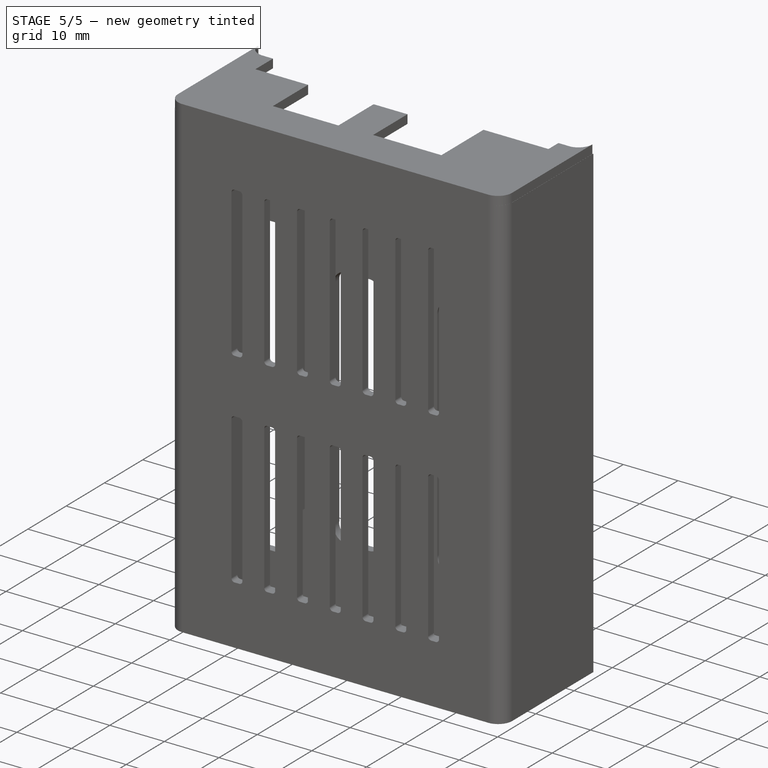
[diagram: stage 5 of 5 — iso view after this stage's code; geometry added in this stage tinted green]
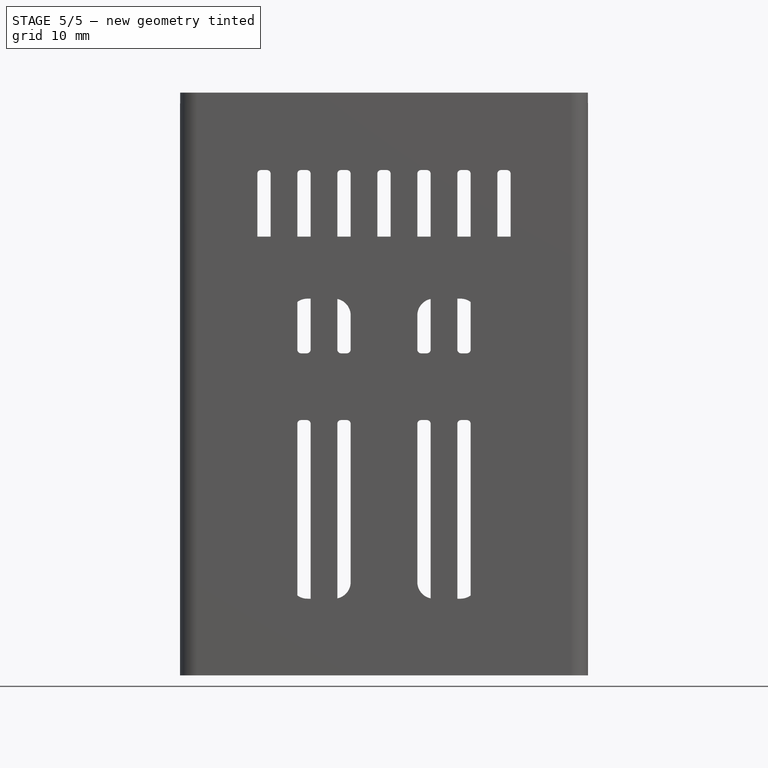
[diagram: stage 5 of 5 — front view after this stage's code; geometry added in this stage tinted green]
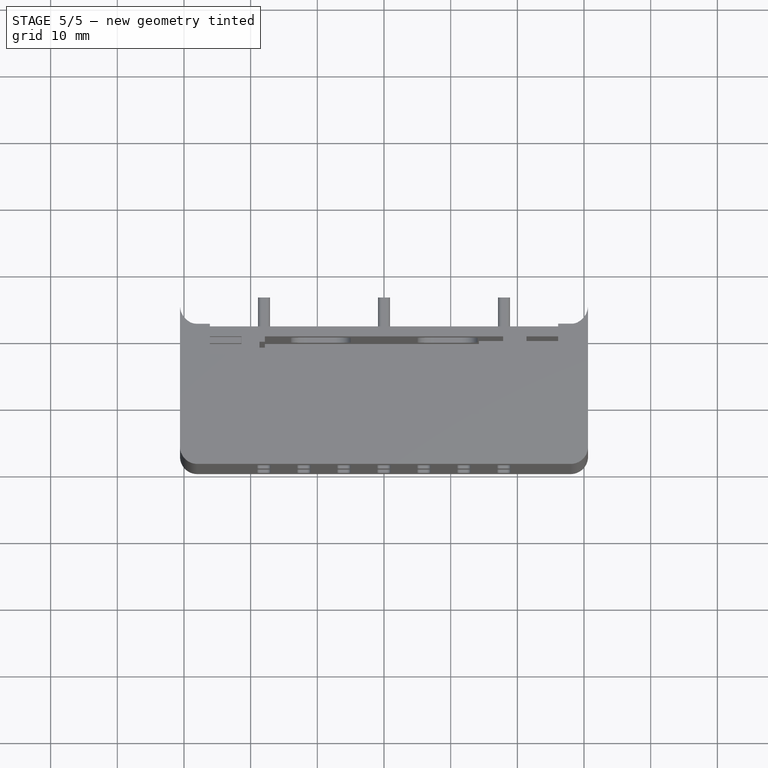
[diagram: stage 5 of 5 — top view after this stage's code; geometry added in this stage tinted green]
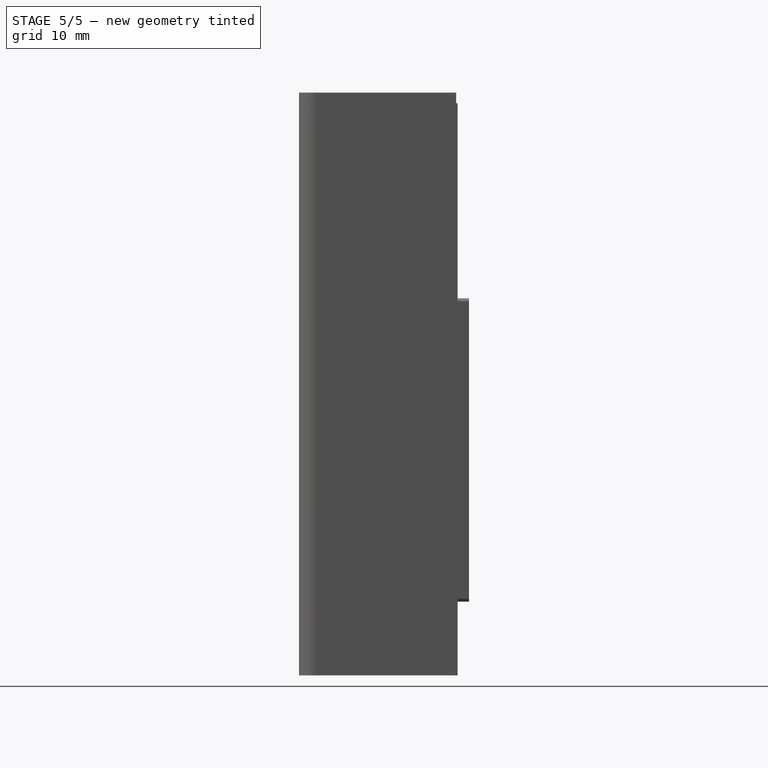
[diagram: stage 5 of 5 — right view after this stage's code; geometry added in this stage tinted green]
FEATURE [Sketcher::SketchObject] Sketch009
  ExternalGeometry = -> [Pad002]
  Placement = pos=(-29.1,0,-0.8) rot=(0.57735,0.57735,0.57735;2.0944rad)
  Support = -> Pad002 [Face54]
  sketch-geometry (4):
    g0: LineSegment StartX=-25.5 StartY=84.3 StartZ=0 EndX=-6.49999 EndY=84.3 EndZ=0
    g1: LineSegment StartX=-6.49999 StartY=84.3 StartZ=0 EndX=-6.49999 EndY=83.5 EndZ=0
    g2: LineSegment StartX=-6.49999 StartY=83.5 StartZ=0 EndX=-25.5 EndY=83.5 EndZ=0
    g3: LineSegment StartX=-25.5 StartY=83.5 StartZ=0 EndX=-25.5 EndY=84.3 EndZ=0
  constraints (12):
    c: Coincident(g0,g1)
    c: Coincident(g1,g2)
    c: Coincident(g2,g3)
    c: Coincident(g3,g0)
    c: Horizontal(g0)
    c: Horizontal(g2)
    c: Vertical(g1)
    c: Vertical(g3)
    c: DistanceY(g-3,g0) = -1.5
    c: PointOnObject(g0,g-4)
    c: DistanceY(g1) = -0.8
    c: DistanceX(g0) = 19
FEATURE [PartDesign::Pocket] Pocket005
  Length = 0.8
  Placement = pos=(0,0,-0.8) rot=(0,0,1;0rad)
  Sketch = -> Sketch009
  Type = 0
FEATURE [Sketcher::SketchObject] Sketch010
  ExternalGeometry = -> [Pocket005]
  Placement = pos=(29.1,0,-0.8) rot=(0.57735,-0.57735,-0.57735;2.0944rad)
  Support = -> Pocket005 [Face173]
  sketch-geometry (4):
    g0: LineSegment StartX=9.09999 StartY=36.2186 StartZ=0 EndX=28.1 EndY=36.2186 EndZ=0
    g1: LineSegment StartX=28.1 StartY=36.2186 StartZ=0 EndX=28.1 EndY=35.4186 EndZ=0
    g2: LineSegment StartX=28.1 StartY=35.4186 StartZ=0 EndX=9.09999 EndY=35.4186 EndZ=0
    g3: LineSegment StartX=9.09999 StartY=35.4186 StartZ=0 EndX=9.09999 EndY=36.2186 EndZ=0
  constraints (12):
    c: Coincident(g0,g1)
    c: Coincident(g1,g2)
    c: Coincident(g2,g3)
    c: Coincident(g3,g0)
    c: Horizontal(g0)
    c: Horizontal(g2)
    c: Vertical(g1)
    c: Vertical(g3)
    c: PointOnObject(g0,g-4)
    c: DistanceY(g3) = 0.8
    c: DistanceX(g0) = 19
    c: DistanceY(g-4,g0) = -1.5
FEATURE [PartDesign::Pocket] Pocket006  label="RpiModule_CASE"
  Length = 0.8
  Placement = pos=(0,0,-0.8) rot=(0,0,1;0rad)
  Sketch = -> Sketch010
  Type = 0
FEATURE [Sketcher::SketchObject] Sketch012
  ExternalGeometry = -> [Pad004]
  Placement = pos=(0,-8.5537,85) rot=(0,0.707107,0.707107;3.14159rad)
  Support = -> Pad004 [Face30]
  sketch-geometry (8):
    g0: LineSegment StartX=28.9248 StartY=-1.6 StartZ=0 EndX=29.7248 EndY=-1.6 EndZ=0
    g1: LineSegment StartX=29.7248 StartY=-1.6 StartZ=0 EndX=29.7248 EndY=-2.25 EndZ=0
    g2: LineSegment StartX=29.7248 StartY=-2.25 StartZ=0 EndX=28.9248 EndY=-2.25 EndZ=0
    g3: LineSegment StartX=28.9248 StartY=-2.25 StartZ=0 EndX=28.9248 EndY=-1.6 EndZ=0
    g4: LineSegment StartX=-29.7752 StartY=-1.6 StartZ=0 EndX=-28.9252 EndY=-1.6 EndZ=0
    g5: LineSegment StartX=-28.9252 StartY=-1.6 StartZ=0 EndX=-28.9252 EndY=-2.25 EndZ=0
    g6: LineSegment StartX=-28.9252 StartY=-2.25 StartZ=0 EndX=-29.7752 EndY=-2.25 EndZ=0
    g7: LineSegment StartX=-29.7752 StartY=-2.25 StartZ=0 EndX=-29.7752 EndY=-1.6 EndZ=0
  constraints (22):
    c: Coincident(g0,g1)
    c: Coincident(g1,g2)
    c: Coincident(g2,g3)
    c: Coincident(g3,g0)
    c: Horizontal(g0)
    c: Horizontal(g2)
    c: Vertical(g1)
    c: Vertical(g3)
    c: Coincident(g2,g-4)
    c: DistanceY(g1) = -0.65
    c: DistanceX(g0) = 0.8
    c: Coincident(g4,g5)
    c: Coincident(g5,g6)
    c: Coincident(g6,g7)
    c: Coincident(g7,g4)
    c: Horizontal(g4)
    c: Horizontal(g6)
    c: Vertical(g5)
    c: Vertical(g7)
    c: Coincident(g5,g-3)
    c: DistanceY(g7) = 0.65
    c: DistanceX(g4) = 0.85
FEATURE [PartDesign::Pad] Pad005  label="RpiModule_CAP"
  Length = 15
  Length2 = 100
  Placement = pos=(0,0,85) rot=(0,0,1;0rad)
  Reversed = true
  Sketch = -> Sketch012
  Type = 0
FEATURE [Part::Feature] Fusion003002  label="arduinoNano"
  Placement = pos=(7.73174,-15.5363,41.879) rot=(0,0,1;3.14159rad)
  shape: bbox 17.78 x 17.97 x 44.84 mm, 1500 faces (baked)
FEATURE [App::DocumentObjectGroup] Group  label="chillerCASE"
  Group = -> [Pocket005,Pad002,Pocket004,LinearPattern001,Pad001,Pocket003,LinearPattern,Pocket002,Pocket001,Pocket,Pad]
FEATURE [App::DocumentObjectGroup] Group001  label="chillerCAP"
  Group = -> [Pad003,Pad004]
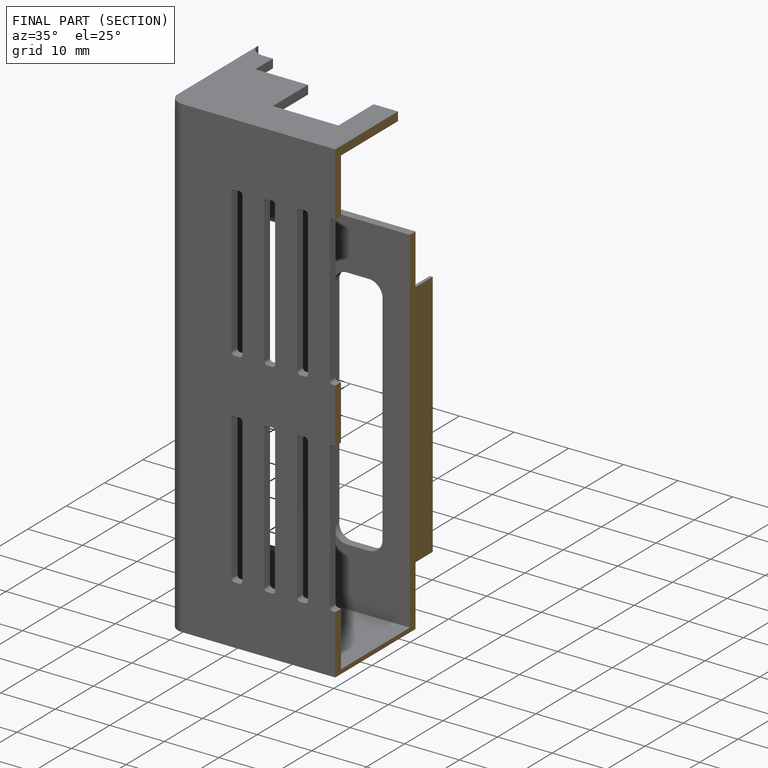
[diagram: finished part — half-section view (interior)]
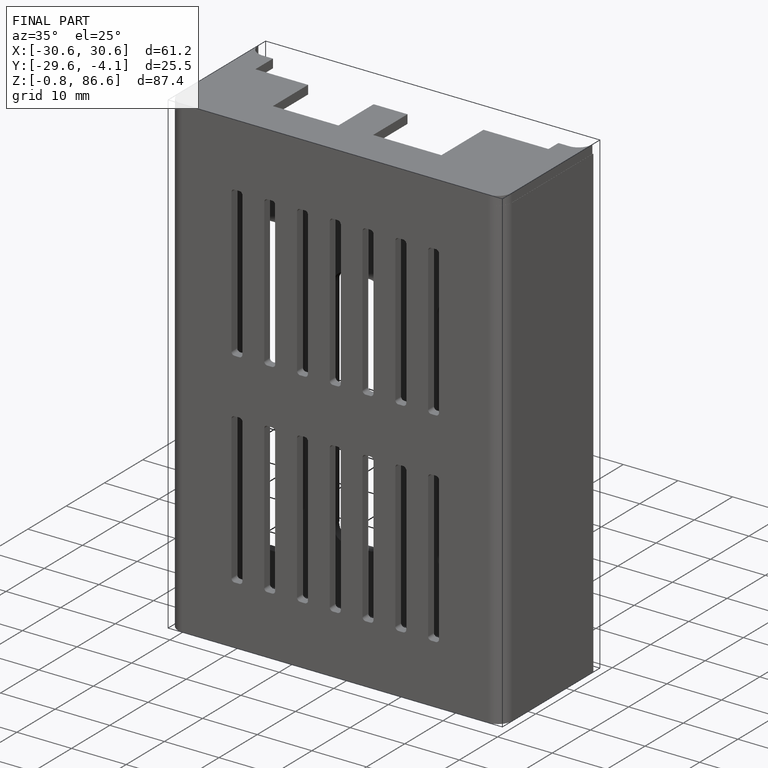
[diagram: finished part — iso view with bounding-box wireframe]
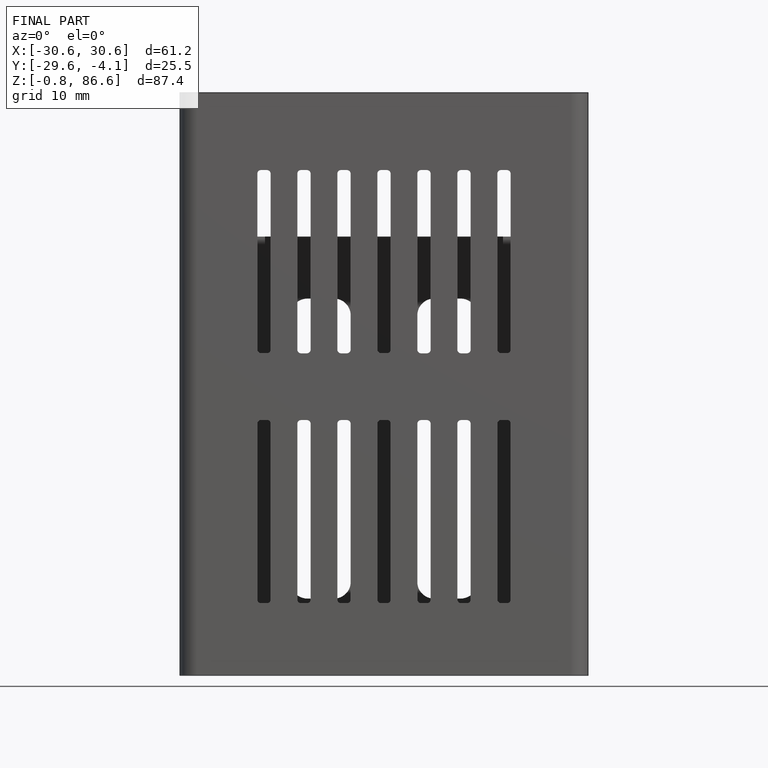
[diagram: finished part — front view with bounding-box wireframe]
